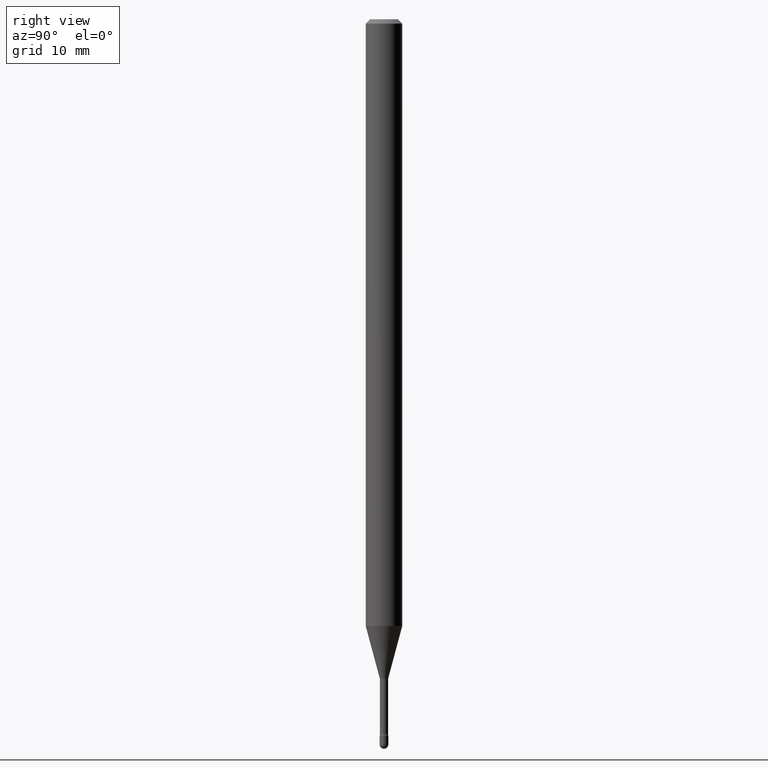
[diagram: clean part render]
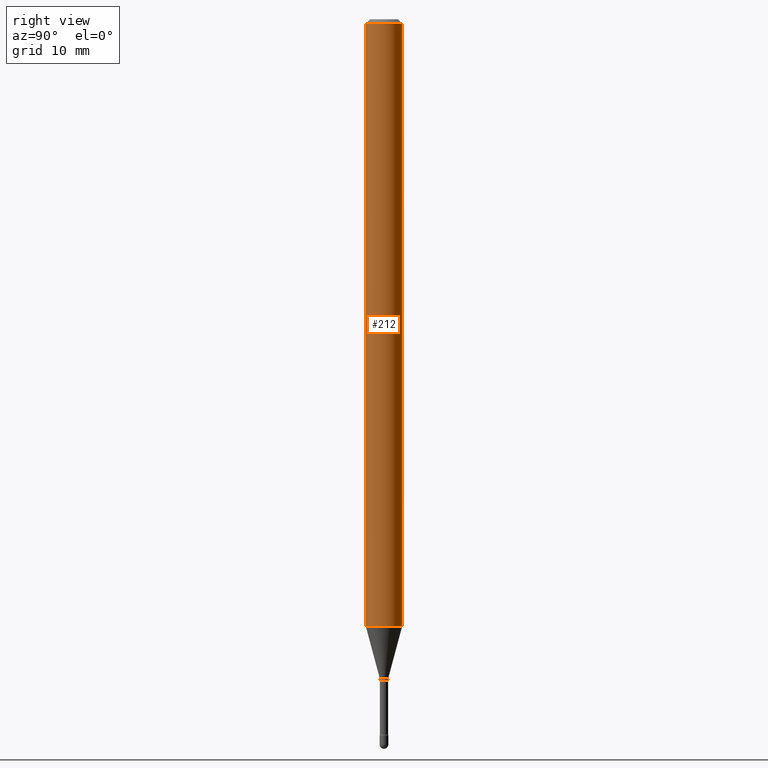
[diagram: same view with one face highlighted and labeled with its STEP entity id]
A machine part, right view. The second image highlights one B-rep face of the part: STEP entity #212.
In plain terms, the highlighted cylindrical surface (edge-blend (fillet) strip) has radius 1.5875 mm, axis along (-0, 0, 1).
Its self-contained STEP definition (entity closure, byte-faithful):
#4 = EDGE_CURVE ( 'NONE', #251, #80, #111, .T. ) ;
#33 = DIRECTION ( 'NONE',  ( -2.445419966882117621E-29, 3.491551279504828729E-15, 1.000000000000000000 ) ) ;
#51 = CARTESIAN_POINT ( 'NONE',  ( 4.440892098500625669E-16, 0.06250000000000000000, 2.598514439221942430E-16 ) ) ;
#55 = CARTESIAN_POINT ( 'NONE',  ( -1.169113584055446105E-44, 1.669184350826100908E-30, 4.780733988912460139E-16 ) ) ;
#56 = EDGE_LOOP ( 'NONE', ( #307, #382, #142, #289 ) ) ;
#61 = CARTESIAN_POINT ( 'NONE',  ( 5.084929837540810216E-29, -7.260222587899458845E-15, -2.079368740913666969 ) ) ;
#74 = CARTESIAN_POINT ( 'NONE',  ( -4.364351673553916201E-16, -0.06250000000000000000, 6.962953538602978834E-16 ) ) ;
#80 = VERTEX_POINT ( 'NONE', #512 ) ;
#103 = DIRECTION ( 'NONE',  ( -6.982962677686265922E-15, -1.000000000000000000, 3.483106191921935554E-15 ) ) ;
#111 = LINE ( 'NONE', #51, #161 ) ;
#125 = EDGE_CURVE ( 'NONE', #319, #499, #371, .T. ) ;
#138 = CARTESIAN_POINT ( 'NONE',  ( 3.668129950323196891E-31, -5.237326919257272109E-17, -0.01500000000000008271 ) ) ;
#142 = ORIENTED_EDGE ( 'NONE', *, *, #250, .F. ) ;
#161 = VECTOR ( 'NONE', #232, 39.37007874015748143 ) ;
#169 = CARTESIAN_POINT ( 'NONE',  ( -4.364351673553912750E-16, -0.06250000000000005551, -0.01499999999999986587 ) ) ;
#199 = DIRECTION ( 'NONE',  ( -2.445419966882117621E-29, 3.491551279504829123E-15, 1.000000000000000000 ) ) ;
#202 = DIRECTION ( 'NONE',  ( -2.445419966882117621E-29, 3.491551279504829123E-15, 1.000000000000000000 ) ) ;
#212 = ADVANCED_FACE ( 'NONE', ( #318 ), #320, .T. ) ;
#232 = DIRECTION ( 'NONE',  ( -2.445419966882117621E-29, 3.491551279504828729E-15, 1.000000000000000000 ) ) ;
#239 = CARTESIAN_POINT ( 'NONE',  ( -4.364351673553407386E-16, -0.06250000000000725808, -2.079368740913666969 ) ) ;
#250 = EDGE_CURVE ( 'NONE', #499, #80, #348, .T. ) ;
#251 = VERTEX_POINT ( 'NONE', #275 ) ;
#275 = CARTESIAN_POINT ( 'NONE',  ( 4.440892098501132019E-16, 0.06249999999999272804, -2.079368740913667413 ) ) ;
#282 = AXIS2_PLACEMENT_3D ( 'NONE', #55, #202, #351 ) ;
#289 = ORIENTED_EDGE ( 'NONE', *, *, #125, .F. ) ;
#307 = ORIENTED_EDGE ( 'NONE', *, *, #368, .T. ) ;
#318 = FACE_OUTER_BOUND ( 'NONE', #56, .T. ) ;
#319 = VERTEX_POINT ( 'NONE', #239 ) ;
#320 = CYLINDRICAL_SURFACE ( 'NONE', #282, 0.06250000000000000000 ) ;
#338 = AXIS2_PLACEMENT_3D ( 'NONE', #138, #497, #103 ) ;
#348 = CIRCLE ( 'NONE', #338, 0.06250000000000000000 ) ;
#351 = DIRECTION ( 'NONE',  ( -6.982962677686265922E-15, -1.000000000000000000, 3.491551279504829123E-15 ) ) ;
#368 = EDGE_CURVE ( 'NONE', #319, #251, #470, .T. ) ;
#371 = LINE ( 'NONE', #74, #506 ) ;
#382 = ORIENTED_EDGE ( 'NONE', *, *, #4, .T. ) ;
#459 = AXIS2_PLACEMENT_3D ( 'NONE', #61, #199, #540 ) ;
#470 = CIRCLE ( 'NONE', #459, 0.06250000000000000000 ) ;
#497 = DIRECTION ( 'NONE',  ( -2.445419966882117621E-29, 3.491551279504829123E-15, 1.000000000000000000 ) ) ;
#499 = VERTEX_POINT ( 'NONE', #169 ) ;
#506 = VECTOR ( 'NONE', #33, 39.37007874015748143 ) ;
#512 = CARTESIAN_POINT ( 'NONE',  ( 4.440892098501137935E-16, 0.06249999999999995837, -0.01500000000000030129 ) ) ;
#540 = DIRECTION ( 'NONE',  ( -6.982962677686265922E-15, -1.000000000000000000, 4.370956789862821150E-15 ) ) ;